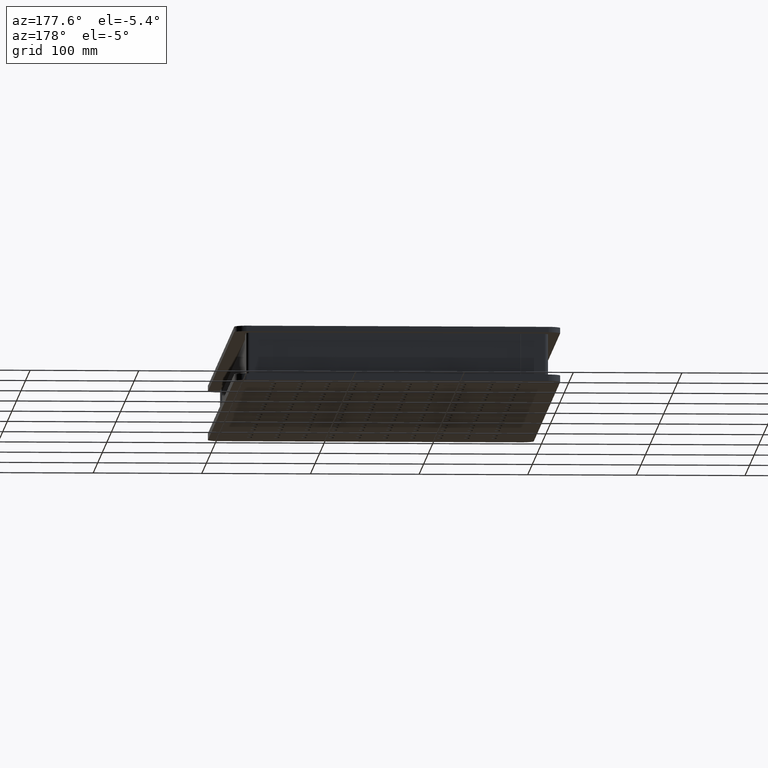
[diagram: clean part render]
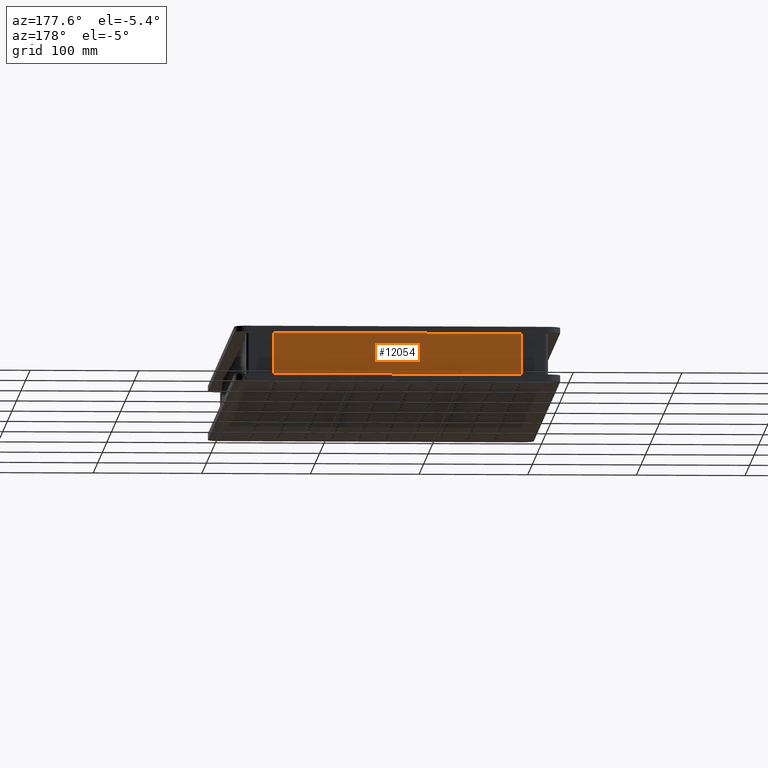
[diagram: same view with one face highlighted and labeled with its STEP entity id]
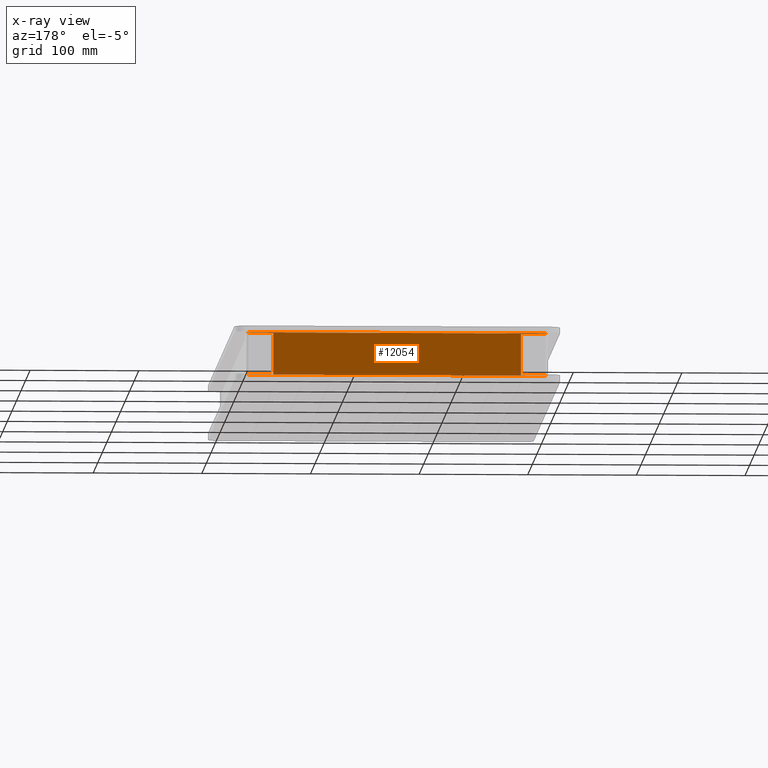
[diagram: x-ray of the same camera — body ghosted, the highlighted face saturated]
A machine part, auxiliary view. The second image highlights one B-rep face of the part: STEP entity #12054.
The next image is the same camera in x-ray: the body ghosted, the highlighted face saturated — about 0% of this face is hidden behind the body in this view.
In plain terms, the highlighted planar face has unit normal (-0, 1, 0).
Its self-contained STEP definition (entity closure, byte-faithful):
#146 = DIRECTION ( 'NONE',  ( 1.000000000000000000, -4.357817818622467104E-17, -3.081487911019577365E-33 ) ) ;
#333 = CARTESIAN_POINT ( 'NONE',  ( 353.6333857621494303, 295.9691974502528637, -445.0013852687678764 ) ) ;
#361 = DIRECTION ( 'NONE',  ( -1.000000000000000000, -0.000000000000000000, 1.224646799147353207E-16 ) ) ;
#1326 = LINE ( 'NONE', #17655, #7539 ) ;
#1458 = LINE ( 'NONE', #5810, #7545 ) ;
#1498 = VERTEX_POINT ( 'NONE', #9934 ) ;
#1705 = VECTOR ( 'NONE', #6082, 1000.000000000000000 ) ;
#1710 = ORIENTED_EDGE ( 'NONE', *, *, #5384, .F. ) ;
#2010 = VECTOR ( 'NONE', #5901, 1000.000000000000000 ) ;
#2225 = ORIENTED_EDGE ( 'NONE', *, *, #11950, .F. ) ;
#2523 = CARTESIAN_POINT ( 'NONE',  ( 367.6333857621494872, 295.9691974502529774, -355.5013852687679901 ) ) ;
#2640 = ORIENTED_EDGE ( 'NONE', *, *, #13508, .F. ) ;
#2723 = EDGE_CURVE ( 'NONE', #17200, #13062, #13231, .T. ) ;
#2823 = EDGE_CURVE ( 'NONE', #13062, #8020, #3311, .T. ) ;
#3150 = EDGE_CURVE ( 'NONE', #10302, #8020, #1326, .T. ) ;
#3311 = LINE ( 'NONE', #6376, #15882 ) ;
#3423 = CARTESIAN_POINT ( 'NONE',  ( -383.3666142378506834, 295.9691974502528637, -394.0013852687678764 ) ) ;
#3769 = CARTESIAN_POINT ( 'NONE',  ( 116.6333857621494303, 295.9691974502528637, -445.0013852687678764 ) ) ;
#3945 = VERTEX_POINT ( 'NONE', #5720 ) ;
#4112 = VECTOR ( 'NONE', #17248, 1000.000000000000000 ) ;
#4535 = CARTESIAN_POINT ( 'NONE',  ( 117.6333857621495440, 295.9691974502530911, -393.5013852687679332 ) ) ;
#4611 = CARTESIAN_POINT ( 'NONE',  ( 390.6333857621494303, 295.9691974502528637, -445.0013852687678764 ) ) ;
#4993 = ORIENTED_EDGE ( 'NONE', *, *, #17258, .T. ) ;
#5384 = EDGE_CURVE ( 'NONE', #3945, #15693, #9187, .T. ) ;
#5474 = DIRECTION ( 'NONE',  ( -0.000000000000000000, 0.000000000000000000, -1.000000000000000000 ) ) ;
#5720 = CARTESIAN_POINT ( 'NONE',  ( 139.6333857621495724, 295.9691974502528637, -393.5013852687679332 ) ) ;
#5758 = DIRECTION ( 'NONE',  ( -0.000000000000000000, -0.000000000000000000, 1.000000000000000000 ) ) ;
#5781 = CARTESIAN_POINT ( 'NONE',  ( 116.6333857621494303, 295.9691974502528637, -393.5013852687679332 ) ) ;
#5803 = EDGE_CURVE ( 'NONE', #15696, #10302, #1458, .T. ) ;
#5810 = CARTESIAN_POINT ( 'NONE',  ( 353.6333857621494303, 295.9691974502528637, -355.0013852687700364 ) ) ;
#5872 = DIRECTION ( 'NONE',  ( -1.000000000000000000, 4.357817818622467104E-17, 3.081487911019577365E-33 ) ) ;
#5901 = DIRECTION ( 'NONE',  ( -0.000000000000000000, 0.000000000000000000, -1.000000000000000000 ) ) ;
#5934 = ORIENTED_EDGE ( 'NONE', *, *, #8343, .T. ) ;
#6082 = DIRECTION ( 'NONE',  ( 1.000000000000000000, 0.000000000000000000, -0.000000000000000000 ) ) ;
#6177 = PLANE ( 'NONE',  #17785 ) ;
#6376 = CARTESIAN_POINT ( 'NONE',  ( 389.6333857621494303, 295.9691974502529774, -355.5013852687679901 ) ) ;
#7384 = CARTESIAN_POINT ( 'NONE',  ( 139.6333857621495724, 295.9691974502530911, -304.5013852687679332 ) ) ;
#7388 = DIRECTION ( 'NONE',  ( 3.081487911019577023E-33, -9.769687673758004719E-33, 1.000000000000000000 ) ) ;
#7539 = VECTOR ( 'NONE', #5474, 1000.000000000000000 ) ;
#7545 = VECTOR ( 'NONE', #10458, 1000.000000000000000 ) ;
#7681 = VERTEX_POINT ( 'NONE', #16859 ) ;
#8020 = VERTEX_POINT ( 'NONE', #19522 ) ;
#8343 = EDGE_CURVE ( 'NONE', #7681, #11744, #13826, .T. ) ;
#8675 = DIRECTION ( 'NONE',  ( -0.000000000000000000, 0.000000000000000000, -1.000000000000000000 ) ) ;
#8833 = ORIENTED_EDGE ( 'NONE', *, *, #3150, .T. ) ;
#8868 = LINE ( 'NONE', #17977, #1705 ) ;
#8932 = VECTOR ( 'NONE', #7388, 1000.000000000000000 ) ;
#8941 = VECTOR ( 'NONE', #8675, 1000.000000000000000 ) ;
#8992 = CARTESIAN_POINT ( 'NONE',  ( 390.6333857621494303, 295.9691974502528637, -355.0013852687701501 ) ) ;
#9187 = LINE ( 'NONE', #4535, #17008 ) ;
#9246 = EDGE_CURVE ( 'NONE', #16759, #15693, #13290, .T. ) ;
#9639 = VECTOR ( 'NONE', #5758, 1000.000000000000000 ) ;
#9934 = CARTESIAN_POINT ( 'NONE',  ( 139.6333857621495724, 295.9691974502530911, -355.5013852687678764 ) ) ;
#10023 = CARTESIAN_POINT ( 'NONE',  ( 367.6333857621495440, 295.9691974502528637, -393.5013852687679901 ) ) ;
#10154 = CARTESIAN_POINT ( 'NONE',  ( 367.6333857621494872, 295.9691974502529774, -393.5013852687679901 ) ) ;
#10302 = VERTEX_POINT ( 'NONE', #8992 ) ;
#10458 = DIRECTION ( 'NONE',  ( 1.000000000000000000, 0.000000000000000000, 0.000000000000000000 ) ) ;
#10770 = DIRECTION ( 'NONE',  ( -1.000000000000000000, -0.000000000000000000, 0.000000000000000000 ) ) ;
#10875 = EDGE_LOOP ( 'NONE', ( #14519, #8833, #15524, #13819, #2640, #5934, #16792, #13669, #1710, #2225, #19392, #4993 ) ) ;
#11611 = EDGE_CURVE ( 'NONE', #11744, #16759, #16796, .T. ) ;
#11744 = VERTEX_POINT ( 'NONE', #17483 ) ;
#11926 = CARTESIAN_POINT ( 'NONE',  ( 116.6333857621494303, 295.9691974502528637, -355.0013852687700364 ) ) ;
#11950 = EDGE_CURVE ( 'NONE', #1498, #3945, #16591, .T. ) ;
#12054 = ADVANCED_FACE ( 'NONE', ( #16678 ), #6177, .T. ) ;
#12725 = CARTESIAN_POINT ( 'NONE',  ( 116.6333857621494303, 295.9691974502528637, -394.0013852687679901 ) ) ;
#13062 = VERTEX_POINT ( 'NONE', #2523 ) ;
#13223 = EDGE_CURVE ( 'NONE', #16568, #1498, #8868, .T. ) ;
#13231 = LINE ( 'NONE', #10154, #8932 ) ;
#13290 = LINE ( 'NONE', #19327, #9639 ) ;
#13508 = EDGE_CURVE ( 'NONE', #7681, #17200, #15986, .T. ) ;
#13625 = CARTESIAN_POINT ( 'NONE',  ( 116.6333857621494303, 295.9691974502528637, -355.5013852687678764 ) ) ;
#13669 = ORIENTED_EDGE ( 'NONE', *, *, #9246, .T. ) ;
#13819 = ORIENTED_EDGE ( 'NONE', *, *, #2723, .F. ) ;
#13826 = LINE ( 'NONE', #4611, #2010 ) ;
#14519 = ORIENTED_EDGE ( 'NONE', *, *, #5803, .T. ) ;
#14573 = LINE ( 'NONE', #3769, #4112 ) ;
#15524 = ORIENTED_EDGE ( 'NONE', *, *, #2823, .F. ) ;
#15693 = VERTEX_POINT ( 'NONE', #5781 ) ;
#15696 = VERTEX_POINT ( 'NONE', #11926 ) ;
#15882 = VECTOR ( 'NONE', #146, 1000.000000000000000 ) ;
#15986 = LINE ( 'NONE', #16382, #19112 ) ;
#16382 = CARTESIAN_POINT ( 'NONE',  ( 389.6333857621494303, 295.9691974502529774, -393.5013852687679901 ) ) ;
#16565 = VECTOR ( 'NONE', #361, 1000.000000000000000 ) ;
#16568 = VERTEX_POINT ( 'NONE', #13625 ) ;
#16591 = LINE ( 'NONE', #7384, #8941 ) ;
#16678 = FACE_OUTER_BOUND ( 'NONE', #10875, .T. ) ;
#16759 = VERTEX_POINT ( 'NONE', #12725 ) ;
#16792 = ORIENTED_EDGE ( 'NONE', *, *, #11611, .T. ) ;
#16796 = LINE ( 'NONE', #3423, #16565 ) ;
#16859 = CARTESIAN_POINT ( 'NONE',  ( 390.6333857621494303, 295.9691974502528637, -393.5013852687679901 ) ) ;
#17008 = VECTOR ( 'NONE', #10770, 1000.000000000000000 ) ;
#17200 = VERTEX_POINT ( 'NONE', #10023 ) ;
#17248 = DIRECTION ( 'NONE',  ( -0.000000000000000000, -0.000000000000000000, 1.000000000000000000 ) ) ;
#17258 = EDGE_CURVE ( 'NONE', #16568, #15696, #14573, .T. ) ;
#17483 = CARTESIAN_POINT ( 'NONE',  ( 390.6333857621493166, 295.9691974502528637, -394.0013852687679332 ) ) ;
#17655 = CARTESIAN_POINT ( 'NONE',  ( 390.6333857621494303, 295.9691974502528637, -445.0013852687678764 ) ) ;
#17785 = AXIS2_PLACEMENT_3D ( 'NONE', #333, #18255, #18349 ) ;
#17977 = CARTESIAN_POINT ( 'NONE',  ( 117.6333857621495440, 295.9691974502530911, -355.5013852687678764 ) ) ;
#18255 = DIRECTION ( 'NONE',  ( -0.000000000000000000, 1.000000000000000000, 0.000000000000000000 ) ) ;
#18349 = DIRECTION ( 'NONE',  ( 0.000000000000000000, -0.000000000000000000, 1.000000000000000000 ) ) ;
#19112 = VECTOR ( 'NONE', #5872, 1000.000000000000000 ) ;
#19327 = CARTESIAN_POINT ( 'NONE',  ( 116.6333857621494303, 295.9691974502528637, -445.0013852687678764 ) ) ;
#19392 = ORIENTED_EDGE ( 'NONE', *, *, #13223, .F. ) ;
#19522 = CARTESIAN_POINT ( 'NONE',  ( 390.6333857621494303, 295.9691974502528637, -355.5013852687679901 ) ) ;